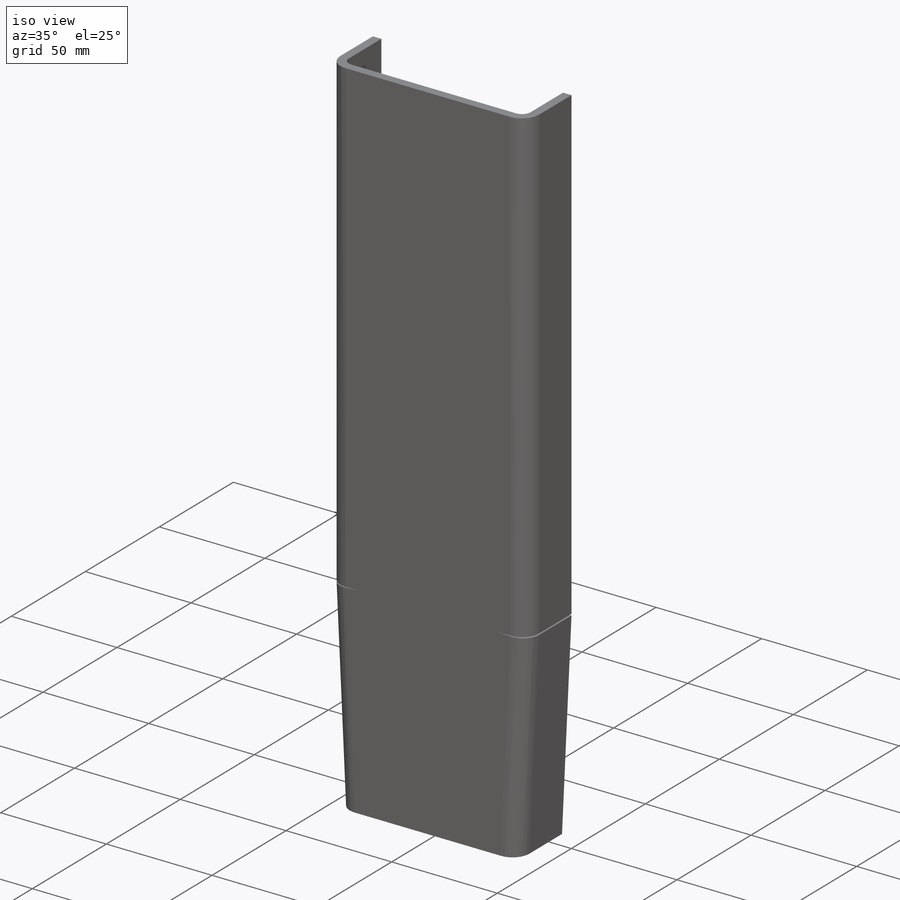
[diagram: iso view]
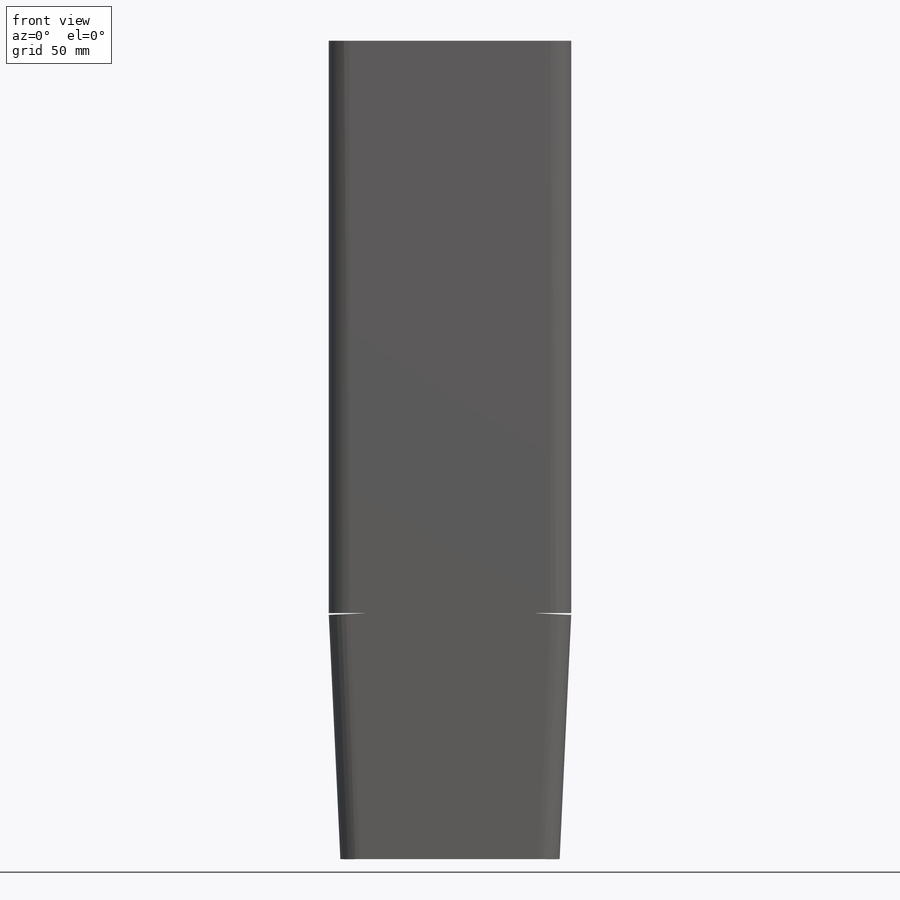
[diagram: front view]
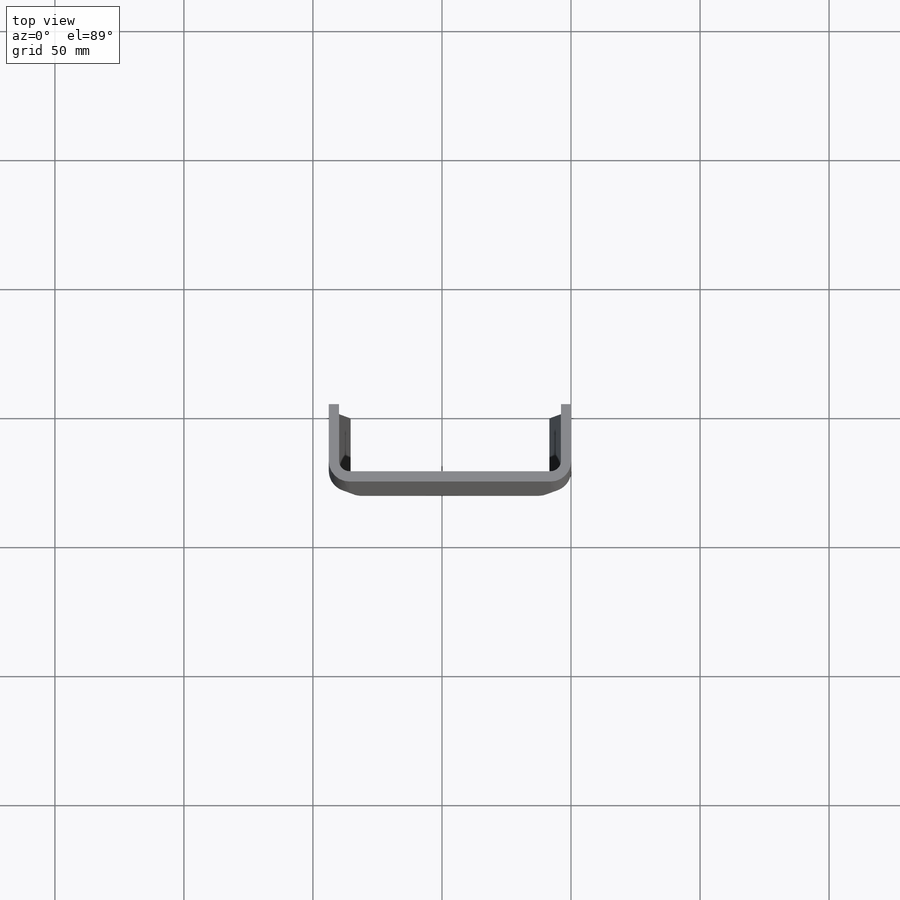
[diagram: top view]
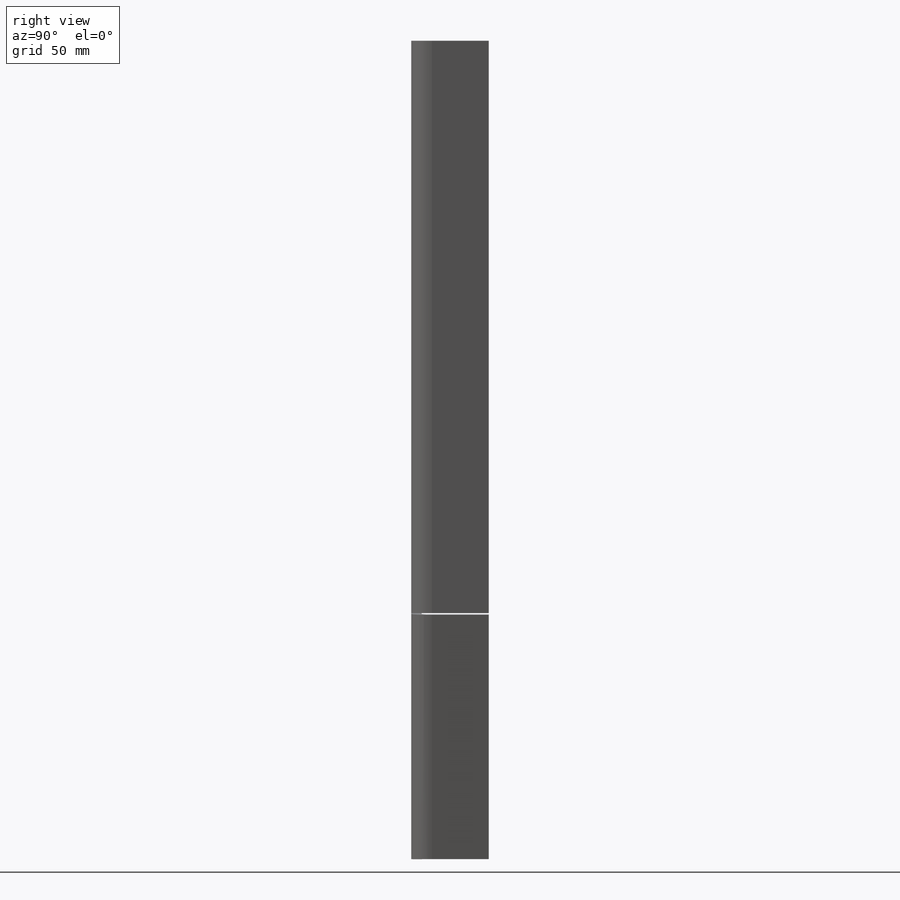
[diagram: right view]
SOLIDWORKS PART (.sldprt)
format: sldprt  version: not decoded by parser v0  size: 246,784 bytes
history: native  units: mm
features: sketch x4, plane x3, material x1, extrude x1, shell x1, sheet_metal_op x1 + 5 further entries (+13 scaffold rows collapsed)
feature tree (29):
  scaffold x13  (default folders/planes/origin — collapsed)
  material  "Materiał <nieokreślony>"
  plane  "Płaszczyzna przednia"
  plane  "Płaszczyzna górna"
  plane  "Płaszczyzna prawa"
  sketch  "Szkic1"  dims[c1.D1=~69.309791mm c2.D1=94.0mm c2.D2=270.0mm c2.D3=94.0mm c3.D2=42.5mm]
  extrude  "Dodanie-wyciągnięcie1"  Depth=30mm
  shell  "Skorupa2"  Thickness=4mm
  sheet_metal_op  "Arkusz blachy1"  Grubość=4mm
  sketch  "Szkic linii zgięć1"  dims[c1.Ostre zgięcie1=0.0 c1.D1=0.0mm c1.D4=90.0deg c1.D5=4.0 c1.D8=0.0mm c1.D9=0.0mm c1.Ostre zgięcie2=0.0 c2.D1=0.0mm c2.D4=90.0deg c2.D5=3.0 c2.D8=0.0mm c2.D9=0.0mm c2.Ostre zgięcie3=0.0 c3.D1=0.0mm c3.D4=90.0deg c3.D5=2.0 c3.D8=0.0mm c3.D9=0.0mm c4.D1=0.0mm]
  sketch  "Płaski szkic1"  dims[D1=0.0mm]
  "Rozłożony model1"
  sketch  "Linie zgięcia1"
  "Rozłożone-<Ostre zgięcie2>1"
  "Rozłożone-<Ostre zgięcie3>1"
  "Rozłożone-<Ostre zgięcie4>1"
  "Transformacja szkicu1"
decode coverage: 6 of 7 modeling features carry decoded parameters; 5 rows unclassified (native names shown)
note: ~ marks probable driven/reference dimensions
note: suppression state not decoded; provenance and decode notes live in map.json
